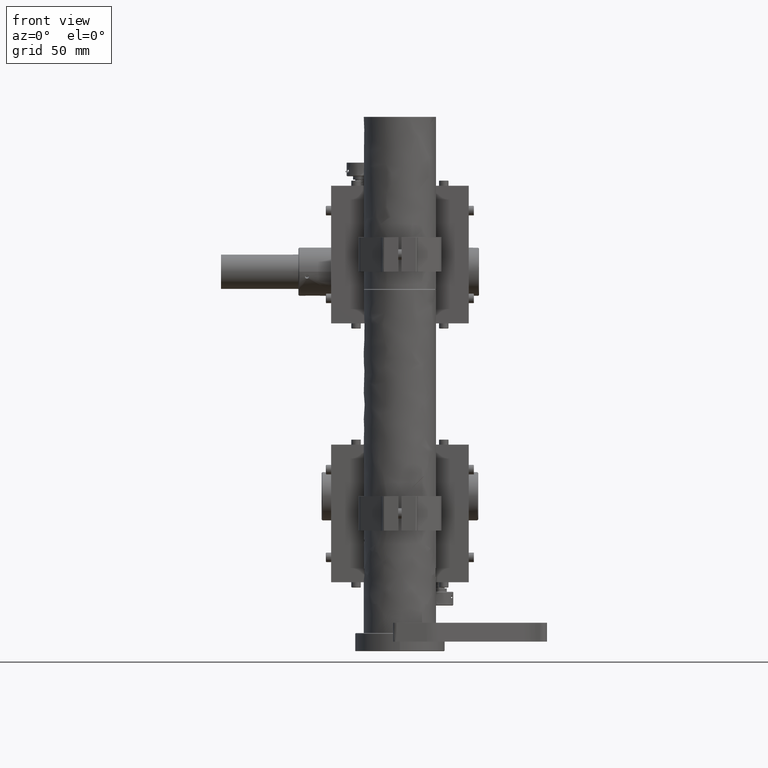
[diagram: clean part render]
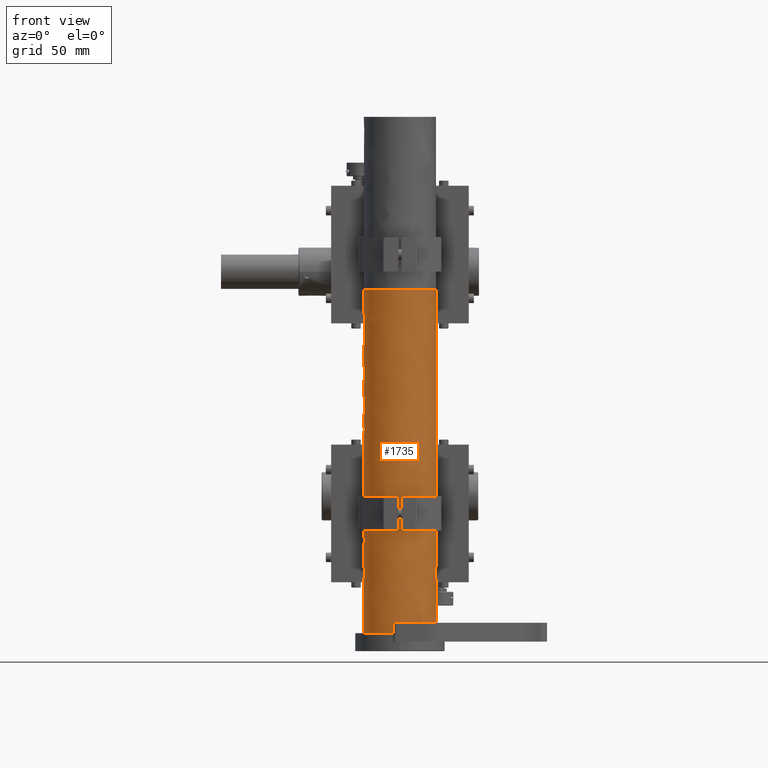
[diagram: same view with one face highlighted and labeled with its STEP entity id]
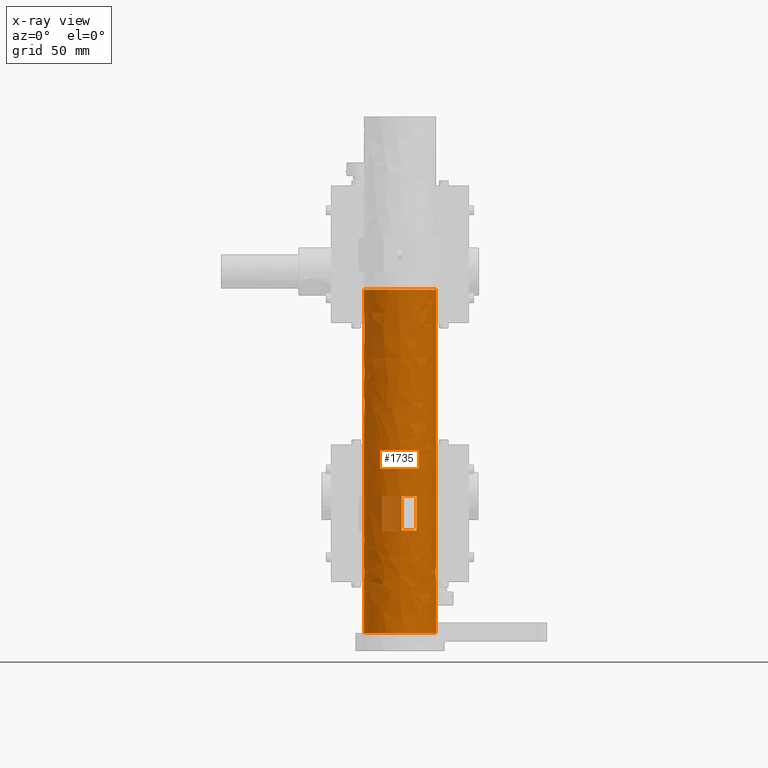
[diagram: x-ray of the same camera — body ghosted, the highlighted face saturated]
A machine part, front view. The second image highlights one B-rep face of the part: STEP entity #1735.
The next image is the same camera in x-ray: the body ghosted, the highlighted face saturated — about 2% of this face is hidden behind the body in this view.
In plain terms, the highlighted face is a freeform B-spline surface patch.
Its self-contained STEP definition (entity closure, byte-faithful):
#1735=ADVANCED_FACE('',(#4821,#4257,#4258,#4259,#4260),#105273,.T.);
#4257=FACE_BOUND('',#7651,.T.);
#4258=FACE_BOUND('',#7652,.T.);
#4259=FACE_BOUND('',#7653,.T.);
#4260=FACE_BOUND('',#7654,.T.);
#4821=FACE_OUTER_BOUND('',#7650,.T.);
#7650=EDGE_LOOP('',(#11911,#11912,#11913,#11914,#11915,#11916,#11917,#11918,
#11919));
#7651=EDGE_LOOP('',(#11920,#11921,#11922,#11923));
#7652=EDGE_LOOP('',(#11924,#11925,#11926,#11927));
#7653=EDGE_LOOP('',(#11928,#11929,#11930,#11931));
#7654=EDGE_LOOP('',(#11932,#11933));
#11911=ORIENTED_EDGE('',*,*,#87232,.F.);
#11912=ORIENTED_EDGE('',*,*,#87247,.T.);
#11913=ORIENTED_EDGE('',*,*,#87240,.F.);
#11914=ORIENTED_EDGE('',*,*,#87248,.T.);
#11915=ORIENTED_EDGE('',*,*,#87249,.T.);
#11916=ORIENTED_EDGE('',*,*,#87238,.F.);
#11917=ORIENTED_EDGE('',*,*,#87250,.T.);
#11918=ORIENTED_EDGE('',*,*,#87251,.T.);
#11919=ORIENTED_EDGE('',*,*,#87242,.F.);
#11920=ORIENTED_EDGE('',*,*,#87252,.T.);
#11921=ORIENTED_EDGE('',*,*,#87253,.T.);
#11922=ORIENTED_EDGE('',*,*,#87254,.T.);
#11923=ORIENTED_EDGE('',*,*,#87255,.T.);
#11924=ORIENTED_EDGE('',*,*,#87256,.T.);
#11925=ORIENTED_EDGE('',*,*,#87257,.T.);
#11926=ORIENTED_EDGE('',*,*,#87258,.T.);
#11927=ORIENTED_EDGE('',*,*,#87259,.T.);
#11928=ORIENTED_EDGE('',*,*,#87260,.T.);
#11929=ORIENTED_EDGE('',*,*,#87261,.T.);
#11930=ORIENTED_EDGE('',*,*,#87262,.T.);
#11931=ORIENTED_EDGE('',*,*,#87263,.T.);
#11932=ORIENTED_EDGE('',*,*,#87235,.F.);
#11933=ORIENTED_EDGE('',*,*,#87264,.T.);
#27257=B_SPLINE_CURVE_WITH_KNOTS('',3,(#136118,#136119,#136120,#136121),
 .UNSPECIFIED.,.F.,.F.,(4,4),(-2.41715683543613,-1.81286762657707),
 .UNSPECIFIED.);
#27258=B_SPLINE_CURVE_WITH_KNOTS('',3,(#136122,#136123,#136124,#136125,
#136126,#136127,#136128),.UNSPECIFIED.,.F.,.F.,(4,3,4),(-2.41715683543613,
-2.11502314293066,-1.81286762657707),.UNSPECIFIED.);
#27262=B_SPLINE_CURVE_WITH_KNOTS('',3,(#136144,#136145,#136146,#136147,
#136148,#136149),.UNSPECIFIED.,.F.,.F.,(4,2,4),(-1.20857841771805,-0.604289136822982,
0.),.UNSPECIFIED.);
#27263=B_SPLINE_CURVE_WITH_KNOTS('',3,(#136150,#136151,#136152,#136153,
#136154,#136155,#136156,#136157,#136158,#136159,#136160,#136161,#136162),
 .UNSPECIFIED.,.F.,.F.,(4,3,3,3,4),(-1.20857841771805,-0.906444725212441,
-0.604289208858919,-0.302133692505269,0.),.UNSPECIFIED.);
#27266=B_SPLINE_CURVE_WITH_KNOTS('',1,(#136176,#136177),.UNSPECIFIED.,.F.,
 .F.,(2,2),(20.0700000000003,219.569999999999),.UNSPECIFIED.);
#27268=B_SPLINE_CURVE_WITH_KNOTS('',1,(#136187,#136188),.UNSPECIFIED.,.F.,
 .F.,(2,2),(0.,160.5),.UNSPECIFIED.);
#27272=B_SPLINE_CURVE_WITH_KNOTS('',1,(#136209,#136210),.UNSPECIFIED.,.F.,
 .F.,(2,2),(0.,31.),.UNSPECIFIED.);
#27277=B_SPLINE_CURVE_WITH_KNOTS('',3,(#136229,#136230,#136231,#136232,
#136233,#136234,#136235),.UNSPECIFIED.,.F.,.F.,(4,3,4),(-2.41715683543613,
-2.12483931013437,-1.81286762657707),.UNSPECIFIED.);
#27278=B_SPLINE_CURVE_WITH_KNOTS('',3,(#136236,#136237,#136238,#136239),
 .UNSPECIFIED.,.F.,.F.,(4,4),(2.41715683543613,3.02144604429512),
 .UNSPECIFIED.);
#27279=B_SPLINE_CURVE_WITH_KNOTS('',3,(#136240,#136241,#136242,#136243,
#136244,#136245,#136246),.UNSPECIFIED.,.F.,.F.,(4,3,4),(2.41715683543613,
2.70947436841666,3.02144604429512),.UNSPECIFIED.);
#27280=B_SPLINE_CURVE_WITH_KNOTS('',1,(#136247,#136248),.UNSPECIFIED.,.F.,
 .F.,(2,2),(0.,160.5),.UNSPECIFIED.);
#27281=B_SPLINE_CURVE_WITH_KNOTS('',1,(#136254,#136255),.UNSPECIFIED.,.F.,
 .F.,(2,2),(-131.946891450771,-65.9734457253857),.UNSPECIFIED.);
#27282=B_SPLINE_CURVE_WITH_KNOTS('',1,(#136259,#136260),.UNSPECIFIED.,.F.,
 .F.,(2,2),(-65.9734457253857,-32.9924425276717),.UNSPECIFIED.);
#27283=B_SPLINE_CURVE_WITH_KNOTS('',1,(#136261,#136262),.UNSPECIFIED.,.F.,
 .F.,(2,2),(20.0700000000003,219.569999999999),.UNSPECIFIED.);
#27284=B_SPLINE_CURVE_WITH_KNOTS('',1,(#136266,#136267),.UNSPECIFIED.,.F.,
 .F.,(2,2),(-98.9544489230996,-65.9734457253856),.UNSPECIFIED.);
#27285=B_SPLINE_CURVE_WITH_KNOTS('',1,(#136273,#136274),.UNSPECIFIED.,.F.,
 .F.,(2,2),(-65.9734457253856,0.),.UNSPECIFIED.);
#27286=B_SPLINE_CURVE_WITH_KNOTS('',1,(#136275,#136276),.UNSPECIFIED.,.F.,
 .F.,(2,2),(0.,31.),.UNSPECIFIED.);
#27287=B_SPLINE_CURVE_WITH_KNOTS('',1,(#136280,#136281),.UNSPECIFIED.,.F.,
 .F.,(2,2),(0.,10.0969771043082),.UNSPECIFIED.);
#27288=B_SPLINE_CURVE_WITH_KNOTS('',1,(#136284,#136285),.UNSPECIFIED.,.F.,
 .F.,(2,2),(0.,20.),.UNSPECIFIED.);
#27289=B_SPLINE_CURVE_WITH_KNOTS('',1,(#136289,#136290),.UNSPECIFIED.,.F.,
 .F.,(2,2),(0.,10.0969771043083),.UNSPECIFIED.);
#27290=B_SPLINE_CURVE_WITH_KNOTS('',1,(#136293,#136294),.UNSPECIFIED.,.F.,
 .F.,(2,2),(0.,20.),.UNSPECIFIED.);
#27291=B_SPLINE_CURVE_WITH_KNOTS('',1,(#136298,#136299),.UNSPECIFIED.,.F.,
 .F.,(2,2),(0.,9.42228628952306),.UNSPECIFIED.);
#27292=B_SPLINE_CURVE_WITH_KNOTS('',1,(#136302,#136303),.UNSPECIFIED.,.F.,
 .F.,(2,2),(-20.,0.),.UNSPECIFIED.);
#27293=B_SPLINE_CURVE_WITH_KNOTS('',1,(#136307,#136308),.UNSPECIFIED.,.F.,
 .F.,(2,2),(0.,9.42228628952307),.UNSPECIFIED.);
#27294=B_SPLINE_CURVE_WITH_KNOTS('',1,(#136311,#136312),.UNSPECIFIED.,.F.,
 .F.,(2,2),(0.,20.),.UNSPECIFIED.);
#27295=B_SPLINE_CURVE_WITH_KNOTS('',1,(#136316,#136317),.UNSPECIFIED.,.F.,
 .F.,(2,2),(0.,9.09659878919808),.UNSPECIFIED.);
#27296=B_SPLINE_CURVE_WITH_KNOTS('',1,(#136320,#136321),.UNSPECIFIED.,.F.,
 .F.,(2,2),(0.,20.),.UNSPECIFIED.);
#27297=B_SPLINE_CURVE_WITH_KNOTS('',1,(#136325,#136326),.UNSPECIFIED.,.F.,
 .F.,(2,2),(0.,9.09659878919804),.UNSPECIFIED.);
#27298=B_SPLINE_CURVE_WITH_KNOTS('',1,(#136329,#136330),.UNSPECIFIED.,.F.,
 .F.,(2,2),(0.,20.),.UNSPECIFIED.);
#27299=B_SPLINE_CURVE_WITH_KNOTS('',3,(#136331,#136332,#136333,#136334,
#136335,#136336,#136337,#136338,#136339,#136340,#136341,#136342,#136343),
 .UNSPECIFIED.,.F.,.F.,(4,3,3,3,4),(-1.20857841771805,-0.916272570554981,
-0.604313351708027,-0.292308057168623,0.),.UNSPECIFIED.);
#27300=B_SPLINE_CURVE_WITH_KNOTS('',3,(#136344,#136345,#136346,#136347,
#136348,#136349),.UNSPECIFIED.,.F.,.F.,(4,2,4),(1.20857841771805,1.81286762657488,
2.41715683543609),.UNSPECIFIED.);
#27301=B_SPLINE_CURVE_WITH_KNOTS('',3,(#136350,#136351,#136352,#136353,
#136354,#136355,#136356,#136357,#136358,#136359,#136360,#136361,#136362),
 .UNSPECIFIED.,.F.,.F.,(4,3,3,3,4),(1.20857841771805,1.50088427332525,1.81284348539892,
2.12484878735977,2.41715683543609),.UNSPECIFIED.);
#27304=B_SPLINE_CURVE_WITH_KNOTS('',1,(#136374,#136375),.UNSPECIFIED.,.F.,
 .F.,(2,2),(-131.946891450771,-65.9734457253857),.UNSPECIFIED.);
#27307=B_SPLINE_CURVE_WITH_KNOTS('',1,(#136382,#136383),.UNSPECIFIED.,.F.,
 .F.,(2,2),(-65.9734457253857,-32.9924425276717),.UNSPECIFIED.);
#27462=B_SPLINE_CURVE_WITH_KNOTS('',1,(#137195,#137196),.UNSPECIFIED.,.F.,
 .F.,(2,2),(0.,20.),.UNSPECIFIED.);
#27464=B_SPLINE_CURVE_WITH_KNOTS('',1,(#137219,#137220),.UNSPECIFIED.,.F.,
 .F.,(2,2),(0.,20.),.UNSPECIFIED.);
#27539=B_SPLINE_CURVE_WITH_KNOTS('',1,(#137520,#137521),.UNSPECIFIED.,.F.,
 .F.,(2,2),(0.,20.),.UNSPECIFIED.);
#27548=B_SPLINE_CURVE_WITH_KNOTS('',1,(#137547,#137548),.UNSPECIFIED.,.F.,
 .F.,(2,2),(-20.,0.),.UNSPECIFIED.);
#27553=B_SPLINE_CURVE_WITH_KNOTS('',1,(#137561,#137562),.UNSPECIFIED.,.F.,
 .F.,(2,2),(0.,20.),.UNSPECIFIED.);
#27576=B_SPLINE_CURVE_WITH_KNOTS('',1,(#137629,#137630),.UNSPECIFIED.,.F.,
 .F.,(2,2),(0.,20.),.UNSPECIFIED.);
#29867=B_SPLINE_CURVE_WITH_KNOTS('',3,(#151545,#151546,#151547,#151548,
#151549,#151550,#151551,#151552,#151553,#151554,#151555,#151556,#151557),
 .UNSPECIFIED.,.F.,.F.,(4,3,3,3,4),(1.20857841771805,1.5107121102235,1.81286762657688,
2.11502314293065,2.41715683543609),.UNSPECIFIED.);
#29870=B_SPLINE_CURVE_WITH_KNOTS('',3,(#151567,#151568,#151569,#151570,
#151571,#151572,#151573),.UNSPECIFIED.,.F.,.F.,(4,3,4),(2.41715683543613,
2.71929052794158,3.02144604429512),.UNSPECIFIED.);
#47618=PCURVE('',#105271,#63114);
#47621=PCURVE('',#105271,#63117);
#47624=PCURVE('',#105272,#63120);
#47626=PCURVE('',#105272,#63122);
#47629=PCURVE('',#105272,#63125);
#47634=PCURVE('',#105273,#63130);
#47635=PCURVE('',#105273,#63131);
#47636=PCURVE('',#105273,#63132);
#47637=PCURVE('',#105273,#63133);
#47638=PCURVE('',#105273,#63134);
#47639=PCURVE('',#105273,#63135);
#47640=PCURVE('',#105273,#63136);
#47641=PCURVE('',#105273,#63137);
#47642=PCURVE('',#105273,#63138);
#47643=PCURVE('',#105273,#63139);
#47644=PCURVE('',#105273,#63140);
#47645=PCURVE('',#105273,#63141);
#47646=PCURVE('',#105273,#63142);
#47647=PCURVE('',#105273,#63143);
#47648=PCURVE('',#105273,#63144);
#47649=PCURVE('',#105273,#63145);
#47650=PCURVE('',#105273,#63146);
#47651=PCURVE('',#105273,#63147);
#47652=PCURVE('',#105273,#63148);
#47653=PCURVE('',#105273,#63149);
#47654=PCURVE('',#105273,#63150);
#47655=PCURVE('',#105273,#63151);
#47656=PCURVE('',#105273,#63152);
#47659=PCURVE('',#105274,#63155);
#47662=PCURVE('',#105275,#63158);
#47796=PCURVE('',#106571,#63292);
#47804=PCURVE('',#106571,#63300);
#47808=PCURVE('',#106571,#63304);
#47841=PCURVE('',#106574,#63337);
#47845=PCURVE('',#106575,#63341);
#47918=PCURVE('',#106582,#63414);
#47926=PCURVE('',#106583,#63422);
#47930=PCURVE('',#106584,#63426);
#47950=PCURVE('',#106587,#63446);
#47967=PCURVE('',#106589,#63463);
#47971=PCURVE('',#106589,#63467);
#47979=PCURVE('',#106589,#63475);
#48717=PCURVE('',#106629,#64213);
#48718=PCURVE('',#106629,#64214);
#50516=PCURVE('',#105611,#66012);
#50519=PCURVE('',#105611,#66015);
#63114=DEFINITIONAL_REPRESENTATION('',(#27258),#277684);
#63117=DEFINITIONAL_REPRESENTATION('',(#27263),#277684);
#63120=DEFINITIONAL_REPRESENTATION('',(#27266),#277684);
#63122=DEFINITIONAL_REPRESENTATION('',(#27268),#277684);
#63125=DEFINITIONAL_REPRESENTATION('',(#27272),#277684);
#63130=DEFINITIONAL_REPRESENTATION('',(#27277),#277684);
#63131=DEFINITIONAL_REPRESENTATION('',(#27279),#277684);
#63132=DEFINITIONAL_REPRESENTATION('',(#27280),#277684);
#63133=DEFINITIONAL_REPRESENTATION('',(#27281),#277684);
#63134=DEFINITIONAL_REPRESENTATION('',(#27282),#277684);
#63135=DEFINITIONAL_REPRESENTATION('',(#27283),#277684);
#63136=DEFINITIONAL_REPRESENTATION('',(#27284),#277684);
#63137=DEFINITIONAL_REPRESENTATION('',(#27285),#277684);
#63138=DEFINITIONAL_REPRESENTATION('',(#27286),#277684);
#63139=DEFINITIONAL_REPRESENTATION('',(#27287),#277684);
#63140=DEFINITIONAL_REPRESENTATION('',(#27288),#277684);
#63141=DEFINITIONAL_REPRESENTATION('',(#27289),#277684);
#63142=DEFINITIONAL_REPRESENTATION('',(#27290),#277684);
#63143=DEFINITIONAL_REPRESENTATION('',(#27291),#277684);
#63144=DEFINITIONAL_REPRESENTATION('',(#27292),#277684);
#63145=DEFINITIONAL_REPRESENTATION('',(#27293),#277684);
#63146=DEFINITIONAL_REPRESENTATION('',(#27294),#277684);
#63147=DEFINITIONAL_REPRESENTATION('',(#27295),#277684);
#63148=DEFINITIONAL_REPRESENTATION('',(#27296),#277684);
#63149=DEFINITIONAL_REPRESENTATION('',(#27297),#277684);
#63150=DEFINITIONAL_REPRESENTATION('',(#27298),#277684);
#63151=DEFINITIONAL_REPRESENTATION('',(#27299),#277684);
#63152=DEFINITIONAL_REPRESENTATION('',(#27301),#277684);
#63155=DEFINITIONAL_REPRESENTATION('',(#27304),#277684);
#63158=DEFINITIONAL_REPRESENTATION('',(#27307),#277684);
#63292=DEFINITIONAL_REPRESENTATION('',(#96813),#277684);
#63300=DEFINITIONAL_REPRESENTATION('',(#96819),#277684);
#63304=DEFINITIONAL_REPRESENTATION('',(#96822),#277684);
#63337=DEFINITIONAL_REPRESENTATION('',(#27462),#277684);
#63341=DEFINITIONAL_REPRESENTATION('',(#27464),#277684);
#63414=DEFINITIONAL_REPRESENTATION('',(#27539),#277684);
#63422=DEFINITIONAL_REPRESENTATION('',(#27548),#277684);
#63426=DEFINITIONAL_REPRESENTATION('',(#27553),#277684);
#63446=DEFINITIONAL_REPRESENTATION('',(#27576),#277684);
#63463=DEFINITIONAL_REPRESENTATION('',(#96892),#277684);
#63467=DEFINITIONAL_REPRESENTATION('',(#96894),#277684);
#63475=DEFINITIONAL_REPRESENTATION('',(#96898),#277684);
#64213=DEFINITIONAL_REPRESENTATION('',(#97416),#277684);
#64214=DEFINITIONAL_REPRESENTATION('',(#97417),#277684);
#66012=DEFINITIONAL_REPRESENTATION('',(#29867),#277684);
#66015=DEFINITIONAL_REPRESENTATION('',(#29870),#277684);
#77925=SURFACE_CURVE('',#27257,(#47618,#47634),.PCURVE_S1.);
#77928=SURFACE_CURVE('',#27262,(#47621,#47655),.PCURVE_S1.);
#77931=SURFACE_CURVE('',#96676,(#47624,#47639),.PCURVE_S1.);
#77933=SURFACE_CURVE('',#96678,(#47626,#47636),.PCURVE_S1.);
#77935=SURFACE_CURVE('',#96679,(#47629,#47642),.PCURVE_S1.);
#77940=SURFACE_CURVE('',#27278,(#47635,#50519),.PCURVE_S1.);
#77941=SURFACE_CURVE('',#96684,(#47637,#47659),.PCURVE_S1.);
#77942=SURFACE_CURVE('',#96685,(#47638,#47662),.PCURVE_S1.);
#77943=SURFACE_CURVE('',#96686,(#47640,#48718),.PCURVE_S1.);
#77944=SURFACE_CURVE('',#96687,(#47641,#48717),.PCURVE_S1.);
#77945=SURFACE_CURVE('',#96688,(#47643,#47804),.PCURVE_S1.);
#77946=SURFACE_CURVE('',#96689,(#47644,#47930),.PCURVE_S1.);
#77947=SURFACE_CURVE('',#96690,(#47645,#47971),.PCURVE_S1.);
#77948=SURFACE_CURVE('',#96691,(#47646,#47918),.PCURVE_S1.);
#77949=SURFACE_CURVE('',#96692,(#47647,#47808),.PCURVE_S1.);
#77950=SURFACE_CURVE('',#96693,(#47648,#47926),.PCURVE_S1.);
#77951=SURFACE_CURVE('',#96694,(#47649,#47967),.PCURVE_S1.);
#77952=SURFACE_CURVE('',#96695,(#47650,#47845),.PCURVE_S1.);
#77953=SURFACE_CURVE('',#96696,(#47651,#47796),.PCURVE_S1.);
#77954=SURFACE_CURVE('',#96697,(#47652,#47841),.PCURVE_S1.);
#77955=SURFACE_CURVE('',#96698,(#47653,#47979),.PCURVE_S1.);
#77956=SURFACE_CURVE('',#96699,(#47654,#47950),.PCURVE_S1.);
#77957=SURFACE_CURVE('',#27300,(#47656,#50516),.PCURVE_S1.);
#87232=EDGE_CURVE('',#100834,#100835,#77925,.T.);
#87235=EDGE_CURVE('',#100837,#100838,#77928,.T.);
#87238=EDGE_CURVE('',#100840,#100841,#77931,.T.);
#87240=EDGE_CURVE('',#100842,#100843,#77933,.T.);
#87242=EDGE_CURVE('',#100835,#100839,#77935,.T.);
#87247=EDGE_CURVE('',#100834,#100843,#77940,.T.);
#87248=EDGE_CURVE('',#100842,#100848,#77941,.T.);
#87249=EDGE_CURVE('',#100848,#100841,#77942,.T.);
#87250=EDGE_CURVE('',#100840,#100849,#77943,.T.);
#87251=EDGE_CURVE('',#100849,#100839,#77944,.T.);
#87252=EDGE_CURVE('',#100853,#100850,#77945,.T.);
#87253=EDGE_CURVE('',#100850,#100851,#77946,.T.);
#87254=EDGE_CURVE('',#100851,#100852,#77947,.T.);
#87255=EDGE_CURVE('',#100852,#100853,#77948,.T.);
#87256=EDGE_CURVE('',#100857,#100854,#77949,.T.);
#87257=EDGE_CURVE('',#100854,#100855,#77950,.T.);
#87258=EDGE_CURVE('',#100855,#100856,#77951,.T.);
#87259=EDGE_CURVE('',#100856,#100857,#77952,.T.);
#87260=EDGE_CURVE('',#100861,#100858,#77953,.T.);
#87261=EDGE_CURVE('',#100858,#100859,#77954,.T.);
#87262=EDGE_CURVE('',#100859,#100860,#77955,.T.);
#87263=EDGE_CURVE('',#100860,#100861,#77956,.T.);
#87264=EDGE_CURVE('',#100837,#100838,#77957,.T.);
#96676=(
BOUNDED_CURVE()
B_SPLINE_CURVE(1,(#136174,#136175),.UNSPECIFIED.,.F.,.F.)
B_SPLINE_CURVE_WITH_KNOTS((2,2),(20.0700000000003,219.569999999999),
 .UNSPECIFIED.)
CURVE()
GEOMETRIC_REPRESENTATION_ITEM()
RATIONAL_B_SPLINE_CURVE((1.,1.))
REPRESENTATION_ITEM('')
);
#96678=(
BOUNDED_CURVE()
B_SPLINE_CURVE(1,(#136185,#136186),.UNSPECIFIED.,.F.,.F.)
B_SPLINE_CURVE_WITH_KNOTS((2,2),(0.,160.5),.UNSPECIFIED.)
CURVE()
GEOMETRIC_REPRESENTATION_ITEM()
RATIONAL_B_SPLINE_CURVE((1.,1.))
REPRESENTATION_ITEM('')
);
#96679=(
BOUNDED_CURVE()
B_SPLINE_CURVE(1,(#136207,#136208),.UNSPECIFIED.,.F.,.F.)
B_SPLINE_CURVE_WITH_KNOTS((2,2),(0.,31.),.UNSPECIFIED.)
CURVE()
GEOMETRIC_REPRESENTATION_ITEM()
RATIONAL_B_SPLINE_CURVE((1.,1.))
REPRESENTATION_ITEM('')
);
#96684=(
BOUNDED_CURVE()
B_SPLINE_CURVE(2,(#136249,#136250,#136251,#136252,#136253),
 .UNSPECIFIED.,.F.,.F.)
B_SPLINE_CURVE_WITH_KNOTS((3,2,3),(-131.946891450771,-98.9601685880784,
-65.9734457253857),.UNSPECIFIED.)
CURVE()
GEOMETRIC_REPRESENTATION_ITEM()
RATIONAL_B_SPLINE_CURVE((1.,0.707106781186548,1.,0.707106781186548,1.))
REPRESENTATION_ITEM('')
);
#96685=(
BOUNDED_CURVE()
B_SPLINE_CURVE(2,(#136256,#136257,#136258),.UNSPECIFIED.,.F.,.F.)
B_SPLINE_CURVE_WITH_KNOTS((3,3),(-65.9734457253857,-32.9924425276717),
 .UNSPECIFIED.)
CURVE()
GEOMETRIC_REPRESENTATION_ITEM()
RATIONAL_B_SPLINE_CURVE((1.,0.707203070198247,1.))
REPRESENTATION_ITEM('')
);
#96686=(
BOUNDED_CURVE()
B_SPLINE_CURVE(2,(#136263,#136264,#136265),.UNSPECIFIED.,.F.,.F.)
B_SPLINE_CURVE_WITH_KNOTS((3,3),(-98.9544489230996,-65.9734457253856),
 .UNSPECIFIED.)
CURVE()
GEOMETRIC_REPRESENTATION_ITEM()
RATIONAL_B_SPLINE_CURVE((1.,0.707203070198239,1.))
REPRESENTATION_ITEM('')
);
#96687=(
BOUNDED_CURVE()
B_SPLINE_CURVE(2,(#136268,#136269,#136270,#136271,#136272),
 .UNSPECIFIED.,.F.,.F.)
B_SPLINE_CURVE_WITH_KNOTS((3,2,3),(-65.9734457253856,-32.9867228626928,
0.),.UNSPECIFIED.)
CURVE()
GEOMETRIC_REPRESENTATION_ITEM()
RATIONAL_B_SPLINE_CURVE((1.,0.707106781186549,1.,0.707106781186549,1.))
REPRESENTATION_ITEM('')
);
#96688=(
BOUNDED_CURVE()
B_SPLINE_CURVE(2,(#136277,#136278,#136279),.UNSPECIFIED.,.F.,.F.)
B_SPLINE_CURVE_WITH_KNOTS((3,3),(0.,10.0969771043082),.UNSPECIFIED.)
CURVE()
GEOMETRIC_REPRESENTATION_ITEM()
RATIONAL_B_SPLINE_CURVE((1.,0.971241812112914,1.))
REPRESENTATION_ITEM('')
);
#96689=(
BOUNDED_CURVE()
B_SPLINE_CURVE(1,(#136282,#136283),.UNSPECIFIED.,.F.,.F.)
B_SPLINE_CURVE_WITH_KNOTS((2,2),(0.,20.),.UNSPECIFIED.)
CURVE()
GEOMETRIC_REPRESENTATION_ITEM()
RATIONAL_B_SPLINE_CURVE((1.,1.))
REPRESENTATION_ITEM('')
);
#96690=(
BOUNDED_CURVE()
B_SPLINE_CURVE(2,(#136286,#136287,#136288),.UNSPECIFIED.,.F.,.F.)
B_SPLINE_CURVE_WITH_KNOTS((3,3),(0.,10.0969771043083),.UNSPECIFIED.)
CURVE()
GEOMETRIC_REPRESENTATION_ITEM()
RATIONAL_B_SPLINE_CURVE((1.,0.97124181211295,1.))
REPRESENTATION_ITEM('')
);
#96691=(
BOUNDED_CURVE()
B_SPLINE_CURVE(1,(#136291,#136292),.UNSPECIFIED.,.F.,.F.)
B_SPLINE_CURVE_WITH_KNOTS((2,2),(0.,20.),.UNSPECIFIED.)
CURVE()
GEOMETRIC_REPRESENTATION_ITEM()
RATIONAL_B_SPLINE_CURVE((1.,1.))
REPRESENTATION_ITEM('')
);
#96692=(
BOUNDED_CURVE()
B_SPLINE_CURVE(2,(#136295,#136296,#136297),.UNSPECIFIED.,.F.,.F.)
B_SPLINE_CURVE_WITH_KNOTS((3,3),(0.,9.42228628952306),.UNSPECIFIED.)
CURVE()
GEOMETRIC_REPRESENTATION_ITEM()
RATIONAL_B_SPLINE_CURVE((1.,0.974941111633099,1.))
REPRESENTATION_ITEM('')
);
#96693=(
BOUNDED_CURVE()
B_SPLINE_CURVE(1,(#136300,#136301),.UNSPECIFIED.,.F.,.F.)
B_SPLINE_CURVE_WITH_KNOTS((2,2),(-20.,0.),.UNSPECIFIED.)
CURVE()
GEOMETRIC_REPRESENTATION_ITEM()
RATIONAL_B_SPLINE_CURVE((1.,1.))
REPRESENTATION_ITEM('')
);
#96694=(
BOUNDED_CURVE()
B_SPLINE_CURVE(2,(#136304,#136305,#136306),.UNSPECIFIED.,.F.,.F.)
B_SPLINE_CURVE_WITH_KNOTS((3,3),(0.,9.42228628952307),.UNSPECIFIED.)
CURVE()
GEOMETRIC_REPRESENTATION_ITEM()
RATIONAL_B_SPLINE_CURVE((1.,0.974941111633153,1.))
REPRESENTATION_ITEM('')
);
#96695=(
BOUNDED_CURVE()
B_SPLINE_CURVE(1,(#136309,#136310),.UNSPECIFIED.,.F.,.F.)
B_SPLINE_CURVE_WITH_KNOTS((2,2),(0.,20.),.UNSPECIFIED.)
CURVE()
GEOMETRIC_REPRESENTATION_ITEM()
RATIONAL_B_SPLINE_CURVE((1.,1.))
REPRESENTATION_ITEM('')
);
#96696=(
BOUNDED_CURVE()
B_SPLINE_CURVE(2,(#136313,#136314,#136315),.UNSPECIFIED.,.F.,.F.)
B_SPLINE_CURVE_WITH_KNOTS((3,3),(0.,9.09659878919808),.UNSPECIFIED.)
CURVE()
GEOMETRIC_REPRESENTATION_ITEM()
RATIONAL_B_SPLINE_CURVE((1.,0.976636864180601,1.))
REPRESENTATION_ITEM('')
);
#96697=(
BOUNDED_CURVE()
B_SPLINE_CURVE(1,(#136318,#136319),.UNSPECIFIED.,.F.,.F.)
B_SPLINE_CURVE_WITH_KNOTS((2,2),(0.,20.),.UNSPECIFIED.)
CURVE()
GEOMETRIC_REPRESENTATION_ITEM()
RATIONAL_B_SPLINE_CURVE((1.,1.))
REPRESENTATION_ITEM('')
);
#96698=(
BOUNDED_CURVE()
B_SPLINE_CURVE(2,(#136322,#136323,#136324),.UNSPECIFIED.,.F.,.F.)
B_SPLINE_CURVE_WITH_KNOTS((3,3),(0.,9.09659878919804),.UNSPECIFIED.)
CURVE()
GEOMETRIC_REPRESENTATION_ITEM()
RATIONAL_B_SPLINE_CURVE((1.,0.976636864180561,1.))
REPRESENTATION_ITEM('')
);
#96699=(
BOUNDED_CURVE()
B_SPLINE_CURVE(1,(#136327,#136328),.UNSPECIFIED.,.F.,.F.)
B_SPLINE_CURVE_WITH_KNOTS((2,2),(0.,20.),.UNSPECIFIED.)
CURVE()
GEOMETRIC_REPRESENTATION_ITEM()
RATIONAL_B_SPLINE_CURVE((1.,1.))
REPRESENTATION_ITEM('')
);
#96813=(
BOUNDED_CURVE()
B_SPLINE_CURVE(2,(#137000,#137001,#137002),.UNSPECIFIED.,.F.,.F.)
B_SPLINE_CURVE_WITH_KNOTS((3,3),(0.,9.09659878919808),.UNSPECIFIED.)
CURVE()
GEOMETRIC_REPRESENTATION_ITEM()
RATIONAL_B_SPLINE_CURVE((1.,0.976636864180544,1.))
REPRESENTATION_ITEM('')
);
#96819=(
BOUNDED_CURVE()
B_SPLINE_CURVE(2,(#137050,#137051,#137052),.UNSPECIFIED.,.F.,.F.)
B_SPLINE_CURVE_WITH_KNOTS((3,3),(0.,10.0969771043082),.UNSPECIFIED.)
CURVE()
GEOMETRIC_REPRESENTATION_ITEM()
RATIONAL_B_SPLINE_CURVE((1.,0.971241812112944,1.))
REPRESENTATION_ITEM('')
);
#96822=(
BOUNDED_CURVE()
B_SPLINE_CURVE(2,(#137075,#137076,#137077),.UNSPECIFIED.,.F.,.F.)
B_SPLINE_CURVE_WITH_KNOTS((3,3),(0.,9.42228628952306),.UNSPECIFIED.)
CURVE()
GEOMETRIC_REPRESENTATION_ITEM()
RATIONAL_B_SPLINE_CURVE((1.,0.974941111633099,1.))
REPRESENTATION_ITEM('')
);
#96892=(
BOUNDED_CURVE()
B_SPLINE_CURVE(2,(#137675,#137676,#137677),.UNSPECIFIED.,.F.,.F.)
B_SPLINE_CURVE_WITH_KNOTS((3,3),(0.,9.42228628952307),.UNSPECIFIED.)
CURVE()
GEOMETRIC_REPRESENTATION_ITEM()
RATIONAL_B_SPLINE_CURVE((1.,0.974941111633113,1.))
REPRESENTATION_ITEM('')
);
#96894=(
BOUNDED_CURVE()
B_SPLINE_CURVE(2,(#137689,#137690,#137691),.UNSPECIFIED.,.F.,.F.)
B_SPLINE_CURVE_WITH_KNOTS((3,3),(0.,10.0969771043083),.UNSPECIFIED.)
CURVE()
GEOMETRIC_REPRESENTATION_ITEM()
RATIONAL_B_SPLINE_CURVE((1.,0.97124181211295,1.))
REPRESENTATION_ITEM('')
);
#96898=(
BOUNDED_CURVE()
B_SPLINE_CURVE(2,(#137717,#137718,#137719),.UNSPECIFIED.,.F.,.F.)
B_SPLINE_CURVE_WITH_KNOTS((3,3),(0.,9.09659878919804),.UNSPECIFIED.)
CURVE()
GEOMETRIC_REPRESENTATION_ITEM()
RATIONAL_B_SPLINE_CURVE((1.,0.976636864180561,1.))
REPRESENTATION_ITEM('')
);
#97416=(
BOUNDED_CURVE()
B_SPLINE_CURVE(2,(#142263,#142264,#142265,#142266,#142267),
 .UNSPECIFIED.,.F.,.F.)
B_SPLINE_CURVE_WITH_KNOTS((3,2,3),(-65.9734457253856,-32.9867228626928,
0.),.UNSPECIFIED.)
CURVE()
GEOMETRIC_REPRESENTATION_ITEM()
RATIONAL_B_SPLINE_CURVE((1.,0.707106781186549,1.,0.707106781186549,1.))
REPRESENTATION_ITEM('')
);
#97417=(
BOUNDED_CURVE()
B_SPLINE_CURVE(2,(#142268,#142269,#142270),.UNSPECIFIED.,.F.,.F.)
B_SPLINE_CURVE_WITH_KNOTS((3,3),(-98.9544489230996,-65.9734457253856),
 .UNSPECIFIED.)
CURVE()
GEOMETRIC_REPRESENTATION_ITEM()
RATIONAL_B_SPLINE_CURVE((1.,0.70720307019824,1.))
REPRESENTATION_ITEM('')
);
#100834=VERTEX_POINT('',#133447);
#100835=VERTEX_POINT('',#133448);
#100837=VERTEX_POINT('',#133450);
#100838=VERTEX_POINT('',#133451);
#100839=VERTEX_POINT('',#133452);
#100840=VERTEX_POINT('',#133453);
#100841=VERTEX_POINT('',#133454);
#100842=VERTEX_POINT('',#133455);
#100843=VERTEX_POINT('',#133456);
#100848=VERTEX_POINT('',#133461);
#100849=VERTEX_POINT('',#133462);
#100850=VERTEX_POINT('',#133463);
#100851=VERTEX_POINT('',#133464);
#100852=VERTEX_POINT('',#133465);
#100853=VERTEX_POINT('',#133466);
#100854=VERTEX_POINT('',#133467);
#100855=VERTEX_POINT('',#133468);
#100856=VERTEX_POINT('',#133469);
#100857=VERTEX_POINT('',#133470);
#100858=VERTEX_POINT('',#133471);
#100859=VERTEX_POINT('',#133472);
#100860=VERTEX_POINT('',#133473);
#100861=VERTEX_POINT('',#133474);
#105271=(
BOUNDED_SURFACE()
B_SPLINE_SURFACE(1,2,((#126343,#126344,#126345,#126346,#126347),(#126348,
#126349,#126350,#126351,#126352)),.UNSPECIFIED.,.F.,.F.,.F.)
B_SPLINE_SURFACE_WITH_KNOTS((2,2),(3,2,3),(0.,50.6430091609897),(-4.9960036108132E-15,
1.5707963267949,3.14159265358979),.UNSPECIFIED.)
GEOMETRIC_REPRESENTATION_ITEM()
RATIONAL_B_SPLINE_SURFACE(((1.,0.707106781186547,1.,0.707106781186548,1.),
(1.,0.707106781186547,1.,0.707106781186548,1.)))
REPRESENTATION_ITEM('')
SURFACE()
);
#105272=(
BOUNDED_SURFACE()
B_SPLINE_SURFACE(2,1,((#126353,#126354),(#126355,#126356),(#126357,#126358),
(#126359,#126360),(#126361,#126362),(#126363,#126364),(#126365,#126366),
(#126367,#126368),(#126369,#126370)),.UNSPECIFIED.,.T.,.F.,.F.)
B_SPLINE_SURFACE_WITH_KNOTS((3,2,2,2,3),(2,2),(0.,32.9867228626938,65.9734457253876,
98.9601685880814,131.946891450775),(0.,239.64),.UNSPECIFIED.)
GEOMETRIC_REPRESENTATION_ITEM()
RATIONAL_B_SPLINE_SURFACE(((1.,1.),(0.707106781186548,0.707106781186548),
(1.,1.),(0.707106781186548,0.707106781186548),(1.,1.),(0.707106781186548,
0.707106781186548),(1.,1.),(0.707106781186548,0.707106781186548),(1.,1.)))
REPRESENTATION_ITEM('')
SURFACE()
);
#105273=(
BOUNDED_SURFACE()
B_SPLINE_SURFACE(2,1,((#126371,#126372),(#126373,#126374),(#126375,#126376),
(#126377,#126378),(#126379,#126380),(#126381,#126382),(#126383,#126384),
(#126385,#126386),(#126387,#126388)),.UNSPECIFIED.,.T.,.F.,.F.)
B_SPLINE_SURFACE_WITH_KNOTS((3,2,2,2,3),(2,2),(0.,32.9867228626938,65.9734457253876,
98.9601685880814,131.946891450775),(0.,239.64),.UNSPECIFIED.)
GEOMETRIC_REPRESENTATION_ITEM()
RATIONAL_B_SPLINE_SURFACE(((1.,1.),(0.707106781186548,0.707106781186548),
(1.,1.),(0.707106781186548,0.707106781186548),(1.,1.),(0.707106781186548,
0.707106781186548),(1.,1.),(0.707106781186548,0.707106781186548),(1.,1.)))
REPRESENTATION_ITEM('')
SURFACE()
);
#105274=(
BOUNDED_SURFACE()
B_SPLINE_SURFACE(2,1,((#126389,#126390),(#126391,#126392),(#126393,#126394),
(#126395,#126396),(#126397,#126398),(#126399,#126400),(#126401,#126402),
(#126403,#126404),(#126405,#126406)),.UNSPECIFIED.,.T.,.F.,.F.)
B_SPLINE_SURFACE_WITH_KNOTS((3,2,2,2,3),(2,2),(0.,36.4738907081781,72.9477814163561,
109.421672124534,145.895562832712),(0.,32.8380389183041),.UNSPECIFIED.)
GEOMETRIC_REPRESENTATION_ITEM()
RATIONAL_B_SPLINE_SURFACE(((1.,1.),(0.707106781186548,0.707106781186548),
(1.,1.),(0.707106781186548,0.707106781186548),(1.,1.),(0.707106781186548,
0.707106781186548),(1.,1.),(0.707106781186548,0.707106781186548),(1.,1.)))
REPRESENTATION_ITEM('')
SURFACE()
);
#105275=(
BOUNDED_SURFACE()
B_SPLINE_SURFACE(2,1,((#126407,#126408),(#126409,#126410),(#126411,#126412),
(#126413,#126414),(#126415,#126416),(#126417,#126418),(#126419,#126420),
(#126421,#126422),(#126423,#126424)),.UNSPECIFIED.,.T.,.F.,.F.)
B_SPLINE_SURFACE_WITH_KNOTS((3,2,2,2,3),(2,2),(0.,36.4738907081781,72.9477814163561,
109.421672124534,145.895562832712),(0.,32.8380389183041),.UNSPECIFIED.)
GEOMETRIC_REPRESENTATION_ITEM()
RATIONAL_B_SPLINE_SURFACE(((1.,1.),(0.707106781186548,0.707106781186548),
(1.,1.),(0.707106781186548,0.707106781186548),(1.,1.),(0.707106781186548,
0.707106781186548),(1.,1.),(0.707106781186548,0.707106781186548),(1.,1.)))
REPRESENTATION_ITEM('')
SURFACE()
);
#105611=(
BOUNDED_SURFACE()
B_SPLINE_SURFACE(1,2,((#133059,#133060,#133061,#133062,#133063),(#133064,
#133065,#133066,#133067,#133068)),.UNSPECIFIED.,.F.,.F.,.F.)
B_SPLINE_SURFACE_WITH_KNOTS((2,2),(3,2,3),(0.,50.6430091609897),(3.14159265358979,
4.71238898038469,6.28318530717959),.UNSPECIFIED.)
GEOMETRIC_REPRESENTATION_ITEM()
RATIONAL_B_SPLINE_SURFACE(((1.,0.707106781186547,1.,0.707106781186548,1.),
(1.,0.707106781186547,1.,0.707106781186548,1.)))
REPRESENTATION_ITEM('')
SURFACE()
);
#106571=B_SPLINE_SURFACE_WITH_KNOTS('',1,1,((#126701,#126702),(#126703,
#126704)),.UNSPECIFIED.,.F.,.F.,.F.,(2,2),(2,2),(-57.8464023931734,-1.69908531688634E-12),
(-2.30926389122033E-14,86.6400000000003),.UNSPECIFIED.);
#106574=B_SPLINE_SURFACE_WITH_KNOTS('',1,1,((#126767,#126768),(#126769,
#126770)),.UNSPECIFIED.,.F.,.F.,.F.,(2,2),(2,2),(-21.8685876439164,-1.08624220729325E-12),
(1.86073378927176E-13,24.2400000000003),.UNSPECIFIED.);
#106575=B_SPLINE_SURFACE_WITH_KNOTS('',1,1,((#126771,#126772),(#126773,
#126774)),.UNSPECIFIED.,.F.,.F.,.F.,(2,2),(2,2),(1.17594822768297E-12,21.8685876439166),
(-24.2400000000001,-1.33226762955019E-15),.UNSPECIFIED.);
#106582=B_SPLINE_SURFACE_WITH_KNOTS('',3,3,((#126961,#126962,#126963,#126964),
(#126965,#126966,#126967,#126968),(#126969,#126970,#126971,#126972),(#126973,
#126974,#126975,#126976)),.UNSPECIFIED.,.F.,.F.,.F.,(4,4),(4,4),(0.,1.),
(0.399999999999997,2.4),.UNSPECIFIED.);
#106583=B_SPLINE_SURFACE_WITH_KNOTS('',3,3,((#126995,#126996,#126997,#126998),
(#126999,#127000,#127001,#127002),(#127003,#127004,#127005,#127006),(#127007,
#127008,#127009,#127010)),.UNSPECIFIED.,.F.,.F.,.F.,(4,4),(4,4),(0.,1.),
(0.400025790549889,2.40002579054989),.UNSPECIFIED.);
#106584=B_SPLINE_SURFACE_WITH_KNOTS('',3,3,((#127011,#127012,#127013,#127014),
(#127015,#127016,#127017,#127018),(#127019,#127020,#127021,#127022),(#127023,
#127024,#127025,#127026)),.UNSPECIFIED.,.F.,.F.,.F.,(4,4),(4,4),(0.,1.),
(0.399999999999999,2.4),.UNSPECIFIED.);
#106587=B_SPLINE_SURFACE_WITH_KNOTS('',3,3,((#127095,#127096,#127097,#127098),
(#127099,#127100,#127101,#127102),(#127103,#127104,#127105,#127106),(#127107,
#127108,#127109,#127110)),.UNSPECIFIED.,.F.,.F.,.F.,(4,4),(4,4),(0.,1.),
(0.400025790549886,2.40002579054989),.UNSPECIFIED.);
#106589=B_SPLINE_SURFACE_WITH_KNOTS('',1,1,((#127133,#127134),(#127135,
#127136)),.UNSPECIFIED.,.F.,.F.,.F.,(2,2),(2,2),(6.13731288012787E-13,57.8464023931734),
(-7.105427357601E-15,86.6400000000004),.UNSPECIFIED.);
#106629=B_SPLINE_SURFACE_WITH_KNOTS('',1,1,((#128521,#128522),(#128523,
#128524)),.UNSPECIFIED.,.F.,.F.,.F.,(2,2),(2,2),(1.11320811917765,63.8430448630213),
(-0.0218183096190367,61.1465199247362),.UNSPECIFIED.);
#126343=CARTESIAN_POINT('',(225.12013197305,29.0068968398495,-44.9999999999994));
#126344=CARTESIAN_POINT('',(225.12013197305,29.0068968398495,-40.9999999999994));
#126345=CARTESIAN_POINT('',(225.119042513068,33.0068966914841,-40.9999999999994));
#126346=CARTESIAN_POINT('',(225.117953053085,37.0068965431187,-40.9999999999994));
#126347=CARTESIAN_POINT('',(225.117953053085,37.0068965431187,-44.9999999999994));
#126348=CARTESIAN_POINT('',(174.477124690478,28.9931034568807,-44.9999999999994));
#126349=CARTESIAN_POINT('',(174.477124690478,28.9931034568807,-40.9999999999995));
#126350=CARTESIAN_POINT('',(174.476035230495,32.9931033085152,-40.9999999999995));
#126351=CARTESIAN_POINT('',(174.474945770513,36.9931031601497,-40.9999999999995));
#126352=CARTESIAN_POINT('',(174.474945770513,36.9931031601497,-44.9999999999994));
#126353=CARTESIAN_POINT('',(199.797538871781,11.9999999999993,10.0700000000008));
#126354=CARTESIAN_POINT('',(199.797538871781,12.000000000001,-229.57));
#126355=CARTESIAN_POINT('',(178.797538871781,11.9999999999993,10.0700000000008));
#126356=CARTESIAN_POINT('',(178.797538871781,12.000000000001,-229.569999999999));
#126357=CARTESIAN_POINT('',(178.797538871781,32.9999999999993,10.070000000001));
#126358=CARTESIAN_POINT('',(178.797538871781,33.0000000000009,-229.569999999999));
#126359=CARTESIAN_POINT('',(178.797538871781,53.9999999999992,10.0700000000011));
#126360=CARTESIAN_POINT('',(178.797538871781,54.0000000000008,-229.569999999999));
#126361=CARTESIAN_POINT('',(199.797538871781,53.9999999999993,10.0700000000011));
#126362=CARTESIAN_POINT('',(199.797538871781,54.0000000000009,-229.569999999999));
#126363=CARTESIAN_POINT('',(220.797538871781,53.9999999999993,10.0700000000011));
#126364=CARTESIAN_POINT('',(220.797538871781,54.0000000000009,-229.569999999999));
#126365=CARTESIAN_POINT('',(220.797538871781,32.9999999999993,10.070000000001));
#126366=CARTESIAN_POINT('',(220.797538871781,33.000000000001,-229.569999999999));
#126367=CARTESIAN_POINT('',(220.797538871781,11.9999999999993,10.0700000000008));
#126368=CARTESIAN_POINT('',(220.797538871781,12.0000000000011,-229.569999999999));
#126369=CARTESIAN_POINT('',(199.797538871781,11.9999999999993,10.0700000000008));
#126370=CARTESIAN_POINT('',(199.797538871781,12.000000000001,-229.57));
#126371=CARTESIAN_POINT('',(199.797538871781,11.9999999999993,10.0700000000008));
#126372=CARTESIAN_POINT('',(199.797538871781,12.000000000001,-229.57));
#126373=CARTESIAN_POINT('',(178.797538871781,11.9999999999993,10.0700000000008));
#126374=CARTESIAN_POINT('',(178.797538871781,12.000000000001,-229.569999999999));
#126375=CARTESIAN_POINT('',(178.797538871781,32.9999999999993,10.070000000001));
#126376=CARTESIAN_POINT('',(178.797538871781,33.0000000000009,-229.569999999999));
#126377=CARTESIAN_POINT('',(178.797538871781,53.9999999999992,10.0700000000011));
#126378=CARTESIAN_POINT('',(178.797538871781,54.0000000000008,-229.569999999999));
#126379=CARTESIAN_POINT('',(199.797538871781,53.9999999999993,10.0700000000011));
#126380=CARTESIAN_POINT('',(199.797538871781,54.0000000000009,-229.569999999999));
#126381=CARTESIAN_POINT('',(220.797538871781,53.9999999999993,10.0700000000011));
#126382=CARTESIAN_POINT('',(220.797538871781,54.0000000000009,-229.569999999999));
#126383=CARTESIAN_POINT('',(220.797538871781,32.9999999999993,10.070000000001));
#126384=CARTESIAN_POINT('',(220.797538871781,33.000000000001,-229.569999999999));
#126385=CARTESIAN_POINT('',(220.797538871781,11.9999999999993,10.0700000000008));
#126386=CARTESIAN_POINT('',(220.797538871781,12.0000000000011,-229.569999999999));
#126387=CARTESIAN_POINT('',(199.797538871781,11.9999999999993,10.0700000000008));
#126388=CARTESIAN_POINT('',(199.797538871781,12.000000000001,-229.57));
#126389=CARTESIAN_POINT('',(199.797538871781,33.0000000000011,-230.499999999999));
#126390=CARTESIAN_POINT('',(176.577539733042,32.9936756848024,-207.279999999999));
#126391=CARTESIAN_POINT('',(199.797538871781,33.0000000000011,-230.499999999999));
#126392=CARTESIAN_POINT('',(176.58386404824,9.7736765460631,-207.279999999999));
#126393=CARTESIAN_POINT('',(199.797538871781,33.0000000000011,-230.499999999999));
#126394=CARTESIAN_POINT('',(199.80386318698,9.78000086126159,-207.279999999999));
#126395=CARTESIAN_POINT('',(199.797538871781,33.0000000000011,-230.499999999999));
#126396=CARTESIAN_POINT('',(223.023862325719,9.78632517646009,-207.279999999999));
#126397=CARTESIAN_POINT('',(199.797538871781,33.0000000000011,-230.499999999999));
#126398=CARTESIAN_POINT('',(223.01753801052,33.0063243151994,-207.279999999999));
#126399=CARTESIAN_POINT('',(199.797538871781,33.0000000000011,-230.499999999999));
#126400=CARTESIAN_POINT('',(223.011213695322,56.2263234539387,-207.279999999998));
#126401=CARTESIAN_POINT('',(199.797538871781,33.0000000000011,-230.499999999999));
#126402=CARTESIAN_POINT('',(199.791214556583,56.2199991387402,-207.279999999998));
#126403=CARTESIAN_POINT('',(199.797538871781,33.0000000000011,-230.499999999999));
#126404=CARTESIAN_POINT('',(176.571215417843,56.2136748235417,-207.279999999998));
#126405=CARTESIAN_POINT('',(199.797538871781,33.0000000000011,-230.499999999999));
#126406=CARTESIAN_POINT('',(176.577539733042,32.9936756848024,-207.279999999999));
#126407=CARTESIAN_POINT('',(199.797538871781,33.0000000000011,-230.499999999999));
#126408=CARTESIAN_POINT('',(176.577539733042,32.9936756848024,-207.279999999999));
#126409=CARTESIAN_POINT('',(199.797538871781,33.0000000000011,-230.499999999999));
#126410=CARTESIAN_POINT('',(176.58386404824,9.7736765460631,-207.279999999999));
#126411=CARTESIAN_POINT('',(199.797538871781,33.0000000000011,-230.499999999999));
#126412=CARTESIAN_POINT('',(199.80386318698,9.78000086126159,-207.279999999999));
#126413=CARTESIAN_POINT('',(199.797538871781,33.0000000000011,-230.499999999999));
#126414=CARTESIAN_POINT('',(223.023862325719,9.78632517646009,-207.279999999999));
#126415=CARTESIAN_POINT('',(199.797538871781,33.0000000000011,-230.499999999999));
#126416=CARTESIAN_POINT('',(223.01753801052,33.0063243151994,-207.279999999999));
#126417=CARTESIAN_POINT('',(199.797538871781,33.0000000000011,-230.499999999999));
#126418=CARTESIAN_POINT('',(223.011213695322,56.2263234539387,-207.279999999998));
#126419=CARTESIAN_POINT('',(199.797538871781,33.0000000000011,-230.499999999999));
#126420=CARTESIAN_POINT('',(199.791214556583,56.2199991387402,-207.279999999998));
#126421=CARTESIAN_POINT('',(199.797538871781,33.0000000000011,-230.499999999999));
#126422=CARTESIAN_POINT('',(176.571215417843,56.2136748235417,-207.279999999998));
#126423=CARTESIAN_POINT('',(199.797538871781,33.0000000000011,-230.499999999999));
#126424=CARTESIAN_POINT('',(176.577539733042,32.9936756848024,-207.279999999999));
#126701=CARTESIAN_POINT('',(170.877005339016,-7.32000000000224,-69.4999999999967));
#126702=CARTESIAN_POINT('',(170.877005339016,79.3199999999981,-69.4999999999967));
#126703=CARTESIAN_POINT('',(228.723407732187,-7.32000000000224,-69.4999999999967));
#126704=CARTESIAN_POINT('',(228.723407732187,79.3199999999981,-69.4999999999967));
#126767=CARTESIAN_POINT('',(200.79753887178,73.9223823036578,-91.6199999999963));
#126768=CARTESIAN_POINT('',(200.79753887178,73.9223823036578,-67.3799999999962));
#126769=CARTESIAN_POINT('',(200.79753887178,52.0537946597425,-91.6199999999963));
#126770=CARTESIAN_POINT('',(200.79753887178,52.0537946597425,-67.3799999999962));
#126771=CARTESIAN_POINT('',(198.79753887178,52.0537946597424,-91.6199999999963));
#126772=CARTESIAN_POINT('',(198.79753887178,52.0537946597424,-67.3799999999962));
#126773=CARTESIAN_POINT('',(198.79753887178,73.9223823036578,-91.6199999999963));
#126774=CARTESIAN_POINT('',(198.79753887178,73.9223823036578,-67.3799999999962));
#126961=CARTESIAN_POINT('',(179.764167325947,26.7020618845037,-89.4999999999965));
#126962=CARTESIAN_POINT('',(179.764167325947,26.7020618845036,-82.8333333333298));
#126963=CARTESIAN_POINT('',(179.764167325947,26.7020618845036,-76.1666666666631));
#126964=CARTESIAN_POINT('',(179.764167325947,26.7020618845035,-69.4999999999965));
#126965=CARTESIAN_POINT('',(179.250504898629,27.2406407990598,-89.4999999999965));
#126966=CARTESIAN_POINT('',(179.250504898629,27.2406407990598,-82.8333333333298));
#126967=CARTESIAN_POINT('',(179.250504898629,27.2406407990597,-76.1666666666631));
#126968=CARTESIAN_POINT('',(179.250504898629,27.2406407990597,-69.4999999999965));
#126969=CARTESIAN_POINT('',(178.891758886978,27.9253296103603,-89.4999999999965));
#126970=CARTESIAN_POINT('',(178.891758886978,27.9253296103602,-82.8333333333298));
#126971=CARTESIAN_POINT('',(178.891758886978,27.9253296103602,-76.1666666666631));
#126972=CARTESIAN_POINT('',(178.891758886978,27.9253296103601,-69.4999999999965));
#126973=CARTESIAN_POINT('',(178.74132313037,28.6542228944404,-89.4999999999965));
#126974=CARTESIAN_POINT('',(178.74132313037,28.6542228944404,-82.8333333333298));
#126975=CARTESIAN_POINT('',(178.74132313037,28.6542228944404,-76.1666666666631));
#126976=CARTESIAN_POINT('',(178.74132313037,28.6542228944403,-69.4999999999965));
#126995=CARTESIAN_POINT('',(189.79753887178,51.4661853126173,-69.4999999999963));
#126996=CARTESIAN_POINT('',(189.79753887178,51.4661853126173,-76.166666666663));
#126997=CARTESIAN_POINT('',(189.79753887178,51.4661853126174,-82.8333333333296));
#126998=CARTESIAN_POINT('',(189.79753887178,51.4661853126174,-89.4999999999963));
#126999=CARTESIAN_POINT('',(189.053854598268,51.4370299053371,-69.4999999999963));
#127000=CARTESIAN_POINT('',(189.053854598268,51.4370299053371,-76.166666666663));
#127001=CARTESIAN_POINT('',(189.053854598268,51.4370299053372,-82.8333333333296));
#127002=CARTESIAN_POINT('',(189.053854598268,51.4370299053372,-89.4999999999963));
#127003=CARTESIAN_POINT('',(188.31969778838,51.1951389222666,-69.4999999999963));
#127004=CARTESIAN_POINT('',(188.31969778838,51.1951389222666,-76.166666666663));
#127005=CARTESIAN_POINT('',(188.31969778838,51.1951389222666,-82.8333333333296));
#127006=CARTESIAN_POINT('',(188.31969778838,51.1951389222667,-89.4999999999963));
#127007=CARTESIAN_POINT('',(187.704336418654,50.7765141247551,-69.4999999999963));
#127008=CARTESIAN_POINT('',(187.704336418654,50.7765141247551,-76.166666666663));
#127009=CARTESIAN_POINT('',(187.704336418654,50.7765141247551,-82.8333333333296));
#127010=CARTESIAN_POINT('',(187.704336418654,50.7765141247552,-89.4999999999963));
#127011=CARTESIAN_POINT('',(184.948296466863,18.1507575950804,-69.4999999999965));
#127012=CARTESIAN_POINT('',(184.948296466863,18.1507575950804,-76.1666666666632));
#127013=CARTESIAN_POINT('',(184.948296466863,18.1507575950805,-82.8333333333299));
#127014=CARTESIAN_POINT('',(184.948296466863,18.1507575950805,-89.4999999999965));
#127015=CARTESIAN_POINT('',(185.188245142554,17.4462428901398,-69.4999999999965));
#127016=CARTESIAN_POINT('',(185.188245142554,17.4462428901398,-76.1666666666632));
#127017=CARTESIAN_POINT('',(185.188245142554,17.4462428901399,-82.8333333333299));
#127018=CARTESIAN_POINT('',(185.188245142554,17.4462428901399,-89.4999999999965));
#127019=CARTESIAN_POINT('',(185.629386205287,16.8115051238408,-69.4999999999965));
#127020=CARTESIAN_POINT('',(185.629386205287,16.8115051238408,-76.1666666666632));
#127021=CARTESIAN_POINT('',(185.629386205287,16.8115051238409,-82.8333333333299));
#127022=CARTESIAN_POINT('',(185.629386205287,16.8115051238409,-89.4999999999966));
#127023=CARTESIAN_POINT('',(186.20606257657,16.3410152735287,-69.4999999999965));
#127024=CARTESIAN_POINT('',(186.20606257657,16.3410152735288,-76.1666666666632));
#127025=CARTESIAN_POINT('',(186.20606257657,16.3410152735288,-82.8333333333299));
#127026=CARTESIAN_POINT('',(186.20606257657,16.3410152735289,-89.4999999999966));
#127095=CARTESIAN_POINT('',(209.50995699291,51.6190476190459,-89.4999999999964));
#127096=CARTESIAN_POINT('',(209.50995699291,51.6190476190458,-82.8333333333297));
#127097=CARTESIAN_POINT('',(209.50995699291,51.6190476190458,-76.166666666663));
#127098=CARTESIAN_POINT('',(209.50995699291,51.6190476190457,-69.4999999999963));
#127099=CARTESIAN_POINT('',(210.254003981194,51.6014290019568,-89.4999999999964));
#127100=CARTESIAN_POINT('',(210.254003981194,51.6014290019568,-82.8333333333297));
#127101=CARTESIAN_POINT('',(210.254003981194,51.6014290019567,-76.166666666663));
#127102=CARTESIAN_POINT('',(210.254003981194,51.6014290019567,-69.4999999999963));
#127103=CARTESIAN_POINT('',(210.991823820229,51.3709526380457,-89.4999999999964));
#127104=CARTESIAN_POINT('',(210.991823820229,51.3709526380456,-82.8333333333297));
#127105=CARTESIAN_POINT('',(210.991823820229,51.3709526380456,-76.166666666663));
#127106=CARTESIAN_POINT('',(210.991823820229,51.3709526380455,-69.4999999999963));
#127107=CARTESIAN_POINT('',(211.613603347794,50.9619213977413,-89.4999999999964));
#127108=CARTESIAN_POINT('',(211.613603347794,50.9619213977413,-82.8333333333297));
#127109=CARTESIAN_POINT('',(211.613603347794,50.9619213977412,-76.166666666663));
#127110=CARTESIAN_POINT('',(211.613603347794,50.9619213977412,-69.4999999999963));
#127133=CARTESIAN_POINT('',(228.723407732188,-7.32000000000211,-89.4999999999967));
#127134=CARTESIAN_POINT('',(228.723407732188,79.3199999999983,-89.4999999999967));
#127135=CARTESIAN_POINT('',(170.877005339016,-7.32000000000211,-89.4999999999967));
#127136=CARTESIAN_POINT('',(170.877005339016,79.3199999999983,-89.4999999999967));
#128521=CARTESIAN_POINT('',(231.081586419128,2.41583088282172,-9.99999999999975));
#128522=CARTESIAN_POINT('',(231.081586419128,63.584169117177,-9.99999999999975));
#128523=CARTESIAN_POINT('',(168.351749675285,2.41583088282172,-9.99999999999975));
#128524=CARTESIAN_POINT('',(168.351749675285,63.584169117177,-9.99999999999975));
#133059=CARTESIAN_POINT('',(225.117953053085,37.0068965431187,-44.9999999999994));
#133060=CARTESIAN_POINT('',(225.117953053085,37.0068965431187,-48.9999999999994));
#133061=CARTESIAN_POINT('',(225.119042513068,33.0068966914841,-48.9999999999994));
#133062=CARTESIAN_POINT('',(225.12013197305,29.0068968398495,-48.9999999999994));
#133063=CARTESIAN_POINT('',(225.12013197305,29.0068968398495,-44.9999999999994));
#133064=CARTESIAN_POINT('',(174.474945770513,36.9931031601497,-44.9999999999994));
#133065=CARTESIAN_POINT('',(174.474945770513,36.9931031601497,-48.9999999999993));
#133066=CARTESIAN_POINT('',(174.476035230495,32.9931033085152,-48.9999999999993));
#133067=CARTESIAN_POINT('',(174.477124690478,28.9931034568807,-48.9999999999993));
#133068=CARTESIAN_POINT('',(174.477124690478,28.9931034568807,-44.9999999999994));
#133447=CARTESIAN_POINT('',(220.411976775229,37.0056147998628,-44.9999999999994));
#133448=CARTESIAN_POINT('',(220.797538092863,33.0057196649079,-40.9999999999994));
#133450=CARTESIAN_POINT('',(179.183100968333,28.9943852001366,-44.9999999999994));
#133451=CARTESIAN_POINT('',(179.180922048368,36.9943849034057,-44.9999999999994));
#133452=CARTESIAN_POINT('',(220.797538092863,33.0057196649075,-9.99999999999954));
#133453=CARTESIAN_POINT('',(199.797538871781,11.9999999999994,-9.99999999999962));
#133454=CARTESIAN_POINT('',(199.797538871781,12.0000000000008,-209.499999999999));
#133455=CARTESIAN_POINT('',(220.797538092863,33.0057196649091,-209.499999999999));
#133456=CARTESIAN_POINT('',(220.797538092863,33.0057196649079,-48.9999999999994));
#133461=CARTESIAN_POINT('',(178.797539650699,32.9942803350927,-209.499999999999));
#133462=CARTESIAN_POINT('',(178.797539650699,32.9942803350912,-9.99999999999961));
#133463=CARTESIAN_POINT('',(184.948296466864,18.1507575950809,-69.4999999999966));
#133464=CARTESIAN_POINT('',(184.948296466864,18.1507575950811,-89.4999999999966));
#133465=CARTESIAN_POINT('',(179.764167325948,26.7020618845038,-89.4999999999965));
#133466=CARTESIAN_POINT('',(179.764167325948,26.7020618845037,-69.4999999999966));
#133467=CARTESIAN_POINT('',(189.79753887178,51.4661853126179,-69.4999999999964));
#133468=CARTESIAN_POINT('',(189.79753887178,51.466185312618,-89.4999999999964));
#133469=CARTESIAN_POINT('',(198.79753887178,53.9761769634024,-89.4999999999964));
#133470=CARTESIAN_POINT('',(198.79753887178,53.9761769634023,-69.4999999999964));
#133471=CARTESIAN_POINT('',(200.79753887178,53.9761769634024,-69.4999999999964));
#133472=CARTESIAN_POINT('',(200.79753887178,53.9761769634024,-89.4999999999964));
#133473=CARTESIAN_POINT('',(209.50995699291,51.6190476190466,-89.4999999999965));
#133474=CARTESIAN_POINT('',(209.50995699291,51.6190476190465,-69.4999999999964));
#136118=CARTESIAN_POINT('',(220.411976775229,37.0056147998628,-44.9999999999994));
#136119=CARTESIAN_POINT('',(220.411976775229,37.0056147998628,-42.7908608554793));
#136120=CARTESIAN_POINT('',(220.796936400688,35.2148587274879,-40.9999999999994));
#136121=CARTESIAN_POINT('',(220.797538092863,33.0057196649079,-40.9999999999994));
#136122=CARTESIAN_POINT('',(4.70597645240704,3.14159265358979));
#136123=CARTESIAN_POINT('',(4.70597645240704,2.85662276010721));
#136124=CARTESIAN_POINT('',(4.61625611534459,2.61118574727572));
#136125=CARTESIAN_POINT('',(4.5128518965719,2.35619291877193));
#136126=CARTESIAN_POINT('',(4.40944020866212,2.10118167151877));
#136127=CARTESIAN_POINT('',(4.32150458049608,1.85535069240751));
#136128=CARTESIAN_POINT('',(4.32150458049535,1.5707963267949));
#136144=CARTESIAN_POINT('',(179.183100968333,28.9943852001366,-44.9999999999994));
#136145=CARTESIAN_POINT('',(179.183100968333,28.9943852001366,-42.7908609872471));
#136146=CARTESIAN_POINT('',(178.798141342836,30.7851414042709,-41.0000000000039));
#136147=CARTESIAN_POINT('',(178.796937958706,35.2034187392022,-40.9999999999951));
#136148=CARTESIAN_POINT('',(179.18092186527,36.9943840494067,-42.7908601332918));
#136149=CARTESIAN_POINT('',(179.180922048368,36.9943849034057,-44.9999999999994));
#136150=CARTESIAN_POINT('',(45.9370327085836,-2.99760216648792E-15));
#136151=CARTESIAN_POINT('',(45.9370327085836,0.284969893482106));
#136152=CARTESIAN_POINT('',(46.0267530456448,0.530406906313535));
#136153=CARTESIAN_POINT('',(46.1301572644179,0.785399734816986));
#136154=CARTESIAN_POINT('',(46.233568952328,1.04041098206964));
#136155=CARTESIAN_POINT('',(46.3215045804952,1.28624196117988));
#136156=CARTESIAN_POINT('',(46.3215045804947,1.57079632679266));
#136157=CARTESIAN_POINT('',(46.3215045804942,1.85535069240556));
#136158=CARTESIAN_POINT('',(46.2335689523323,2.10118167151782));
#136159=CARTESIAN_POINT('',(46.1301572644192,2.35619291877111));
#136160=CARTESIAN_POINT('',(46.0267530456433,2.61118574727481));
#136161=CARTESIAN_POINT('',(45.9370327085837,2.85662276010688));
#136162=CARTESIAN_POINT('',(45.9370327085837,3.14159265358979));
#136174=CARTESIAN_POINT('',(199.797538871781,11.9999999999994,-9.99999999999962));
#136175=CARTESIAN_POINT('',(199.797538871781,12.0000000000008,-209.499999999999));
#136176=CARTESIAN_POINT('',(131.946891450775,20.0700000000003));
#136177=CARTESIAN_POINT('',(131.946891450775,219.569999999999));
#136185=CARTESIAN_POINT('',(220.797538092863,33.0057196649091,-209.499999999999));
#136186=CARTESIAN_POINT('',(220.797538092863,33.0057196649079,-48.9999999999994));
#136187=CARTESIAN_POINT('',(98.9538159958965,219.57));
#136188=CARTESIAN_POINT('',(98.9538159958965,59.0700000000004));
#136207=CARTESIAN_POINT('',(220.797538092863,33.0057196649079,-40.9999999999994));
#136208=CARTESIAN_POINT('',(220.797538092863,33.0057196649075,-9.99999999999954));
#136209=CARTESIAN_POINT('',(98.9538159958964,51.0700000000004));
#136210=CARTESIAN_POINT('',(98.9538159958967,20.0700000000005));
#136229=CARTESIAN_POINT('',(94.6419945019972,55.0700000000004));
#136230=CARTESIAN_POINT('',(94.6419945019972,53.9891248677374));
#136231=CARTESIAN_POINT('',(95.1013194488281,52.9763710582471));
#136232=CARTESIAN_POINT('',(95.8841908373429,52.2415681870946));
#136233=CARTESIAN_POINT('',(96.7196990910189,51.4573603686974));
#136234=CARTESIAN_POINT('',(97.8247468277365,51.0700000000004));
#136235=CARTESIAN_POINT('',(98.9538159958964,51.0700000000004));
#136236=CARTESIAN_POINT('',(220.411976775229,37.0056147998628,-44.9999999999994));
#136237=CARTESIAN_POINT('',(220.411976775229,37.0056147998628,-47.2091391489433));
#136238=CARTESIAN_POINT('',(220.796936400685,35.2148587319117,-48.9999999999994));
#136239=CARTESIAN_POINT('',(220.797538092863,33.0057196649079,-48.9999999999994));
#136240=CARTESIAN_POINT('',(94.6419945019972,55.0700000000004));
#136241=CARTESIAN_POINT('',(94.6419945019972,56.1508751624297));
#136242=CARTESIAN_POINT('',(95.1013194268839,57.1636289212711));
#136243=CARTESIAN_POINT('',(95.8841908373429,57.8984318129063));
#136244=CARTESIAN_POINT('',(96.7196990719259,58.682639613261));
#136245=CARTESIAN_POINT('',(97.8247468535666,59.0700000000004));
#136246=CARTESIAN_POINT('',(98.9538159958965,59.0700000000004));
#136247=CARTESIAN_POINT('',(98.9538159958965,219.57));
#136248=CARTESIAN_POINT('',(98.9538159958965,59.0700000000004));
#136249=CARTESIAN_POINT('',(220.797538092863,33.0057196649091,-209.499999999999));
#136250=CARTESIAN_POINT('',(220.791818427955,54.0057188859913,-209.499999999998));
#136251=CARTESIAN_POINT('',(199.791819206873,53.9999992210831,-209.499999999998));
#136252=CARTESIAN_POINT('',(178.79181998579,53.9942795561749,-209.499999999998));
#136253=CARTESIAN_POINT('',(178.797539650699,32.9942803350927,-209.499999999999));
#136254=CARTESIAN_POINT('',(98.9538159958965,219.57));
#136255=CARTESIAN_POINT('',(32.980370270509,219.57));
#136256=CARTESIAN_POINT('',(178.797539650699,32.9942803350927,-209.499999999999));
#136257=CARTESIAN_POINT('',(178.803257757983,12.0000000000012,-209.499999999999));
#136258=CARTESIAN_POINT('',(199.797538871781,12.0000000000008,-209.499999999999));
#136259=CARTESIAN_POINT('',(32.980370270509,219.57));
#136260=CARTESIAN_POINT('',(0.,219.569999999999));
#136261=CARTESIAN_POINT('',(0.,20.0700000000003));
#136262=CARTESIAN_POINT('',(0.,219.569999999999));
#136263=CARTESIAN_POINT('',(199.797538871781,11.9999999999994,-9.99999999999962));
#136264=CARTESIAN_POINT('',(178.803257757983,11.9999999999994,-9.99999999999965));
#136265=CARTESIAN_POINT('',(178.797539650699,32.9942803350912,-9.99999999999961));
#136266=CARTESIAN_POINT('',(0.,20.0700000000003));
#136267=CARTESIAN_POINT('',(32.9803702705089,20.0700000000006));
#136268=CARTESIAN_POINT('',(178.797539650699,32.9942803350912,-9.99999999999961));
#136269=CARTESIAN_POINT('',(178.791819985791,53.9942795561728,-9.99999999999961));
#136270=CARTESIAN_POINT('',(199.791819206873,53.999999221081,-9.99999999999957));
#136271=CARTESIAN_POINT('',(220.791818427954,54.0057188859891,-9.99999999999954));
#136272=CARTESIAN_POINT('',(220.797538092863,33.0057196649075,-9.99999999999954));
#136273=CARTESIAN_POINT('',(32.9803702705089,20.0700000000006));
#136274=CARTESIAN_POINT('',(98.9538159958967,20.0700000000005));
#136275=CARTESIAN_POINT('',(98.9538159958964,51.0700000000004));
#136276=CARTESIAN_POINT('',(98.9538159958967,20.0700000000005));
#136277=CARTESIAN_POINT('',(179.764167325948,26.7020618845037,-69.4999999999966));
#136278=CARTESIAN_POINT('',(181.308076429136,21.7909776328088,-69.4999999999965));
#136279=CARTESIAN_POINT('',(184.948296466864,18.1507575950809,-69.4999999999966));
#136280=CARTESIAN_POINT('',(26.2546735695248,79.5699999999975));
#136281=CARTESIAN_POINT('',(16.4933614313457,79.5699999999973));
#136282=CARTESIAN_POINT('',(184.948296466864,18.1507575950809,-69.4999999999966));
#136283=CARTESIAN_POINT('',(184.948296466864,18.1507575950811,-89.4999999999966));
#136284=CARTESIAN_POINT('',(16.4933614313457,79.5699999999973));
#136285=CARTESIAN_POINT('',(16.4933614313456,99.5699999999973));
#136286=CARTESIAN_POINT('',(184.948296466864,18.1507575950811,-89.4999999999966));
#136287=CARTESIAN_POINT('',(181.308076429136,21.7909776328094,-89.4999999999966));
#136288=CARTESIAN_POINT('',(179.764167325948,26.7020618845038,-89.4999999999965));
#136289=CARTESIAN_POINT('',(16.4933614313456,99.5699999999973));
#136290=CARTESIAN_POINT('',(26.2546735695249,99.5699999999975));
#136291=CARTESIAN_POINT('',(179.764167325948,26.7020618845038,-89.4999999999965));
#136292=CARTESIAN_POINT('',(179.764167325948,26.7020618845037,-69.4999999999966));
#136293=CARTESIAN_POINT('',(26.2546735695249,99.5699999999975));
#136294=CARTESIAN_POINT('',(26.2546735695248,79.5699999999975));
#136295=CARTESIAN_POINT('',(198.79753887178,53.9761769634023,-69.4999999999964));
#136296=CARTESIAN_POINT('',(194.011172595097,53.7479959042409,-69.4999999999964));
#136297=CARTESIAN_POINT('',(189.79753887178,51.4661853126179,-69.4999999999964));
#136298=CARTESIAN_POINT('',(64.8729540745182,79.5699999999974));
#136299=CARTESIAN_POINT('',(55.275883918603,79.5699999999974));
#136300=CARTESIAN_POINT('',(189.79753887178,51.4661853126179,-69.4999999999964));
#136301=CARTESIAN_POINT('',(189.79753887178,51.466185312618,-89.4999999999964));
#136302=CARTESIAN_POINT('',(55.275883918603,79.5699999999974));
#136303=CARTESIAN_POINT('',(55.2758839186031,99.5699999999974));
#136304=CARTESIAN_POINT('',(189.79753887178,51.466185312618,-89.4999999999964));
#136305=CARTESIAN_POINT('',(194.011172595098,53.7479959042399,-89.4999999999965));
#136306=CARTESIAN_POINT('',(198.79753887178,53.9761769634024,-89.4999999999964));
#136307=CARTESIAN_POINT('',(55.2758839186031,99.5699999999974));
#136308=CARTESIAN_POINT('',(64.8729540745181,99.5699999999974));
#136309=CARTESIAN_POINT('',(198.79753887178,53.9761769634024,-89.4999999999964));
#136310=CARTESIAN_POINT('',(198.79753887178,53.9761769634023,-69.4999999999964));
#136311=CARTESIAN_POINT('',(64.8729540745181,99.5699999999974));
#136312=CARTESIAN_POINT('',(64.8729540745182,79.5699999999974));
#136313=CARTESIAN_POINT('',(209.50995699291,51.6190476190465,-69.4999999999964));
#136314=CARTESIAN_POINT('',(205.413075876942,53.7561398702174,-69.4999999999964));
#136315=CARTESIAN_POINT('',(200.79753887178,53.9761769634024,-69.4999999999964));
#136316=CARTESIAN_POINT('',(76.3553320425035,79.5699999999974));
#136317=CARTESIAN_POINT('',(67.0739373762549,79.5699999999974));
#136318=CARTESIAN_POINT('',(200.79753887178,53.9761769634024,-69.4999999999964));
#136319=CARTESIAN_POINT('',(200.79753887178,53.9761769634024,-89.4999999999964));
#136320=CARTESIAN_POINT('',(67.0739373762549,79.5699999999974));
#136321=CARTESIAN_POINT('',(67.0739373762549,99.5699999999974));
#136322=CARTESIAN_POINT('',(200.79753887178,53.9761769634024,-89.4999999999964));
#136323=CARTESIAN_POINT('',(205.413075876942,53.7561398702184,-89.4999999999964));
#136324=CARTESIAN_POINT('',(209.50995699291,51.6190476190466,-89.4999999999965));
#136325=CARTESIAN_POINT('',(67.0739373762549,99.5699999999974));
#136326=CARTESIAN_POINT('',(76.3553320425035,99.5699999999975));
#136327=CARTESIAN_POINT('',(209.50995699291,51.6190476190466,-89.4999999999965));
#136328=CARTESIAN_POINT('',(209.50995699291,51.6190476190465,-69.4999999999964));
#136329=CARTESIAN_POINT('',(76.3553320425035,99.5699999999975));
#136330=CARTESIAN_POINT('',(76.3553320425035,79.5699999999974));
#136331=CARTESIAN_POINT('',(28.6685487766096,55.0700000000004));
#136332=CARTESIAN_POINT('',(28.6685487766098,53.9891248630122));
#136333=CARTESIAN_POINT('',(29.1278737200155,52.9763710614628));
#136334=CARTESIAN_POINT('',(29.9107451119526,52.2415681870974));
#136335=CARTESIAN_POINT('',(30.7462533655731,51.4573603687513));
#136336=CARTESIAN_POINT('',(31.8513011024141,51.0700000000028));
#136337=CARTESIAN_POINT('',(32.9803702704999,51.0700000000007));
#136338=CARTESIAN_POINT('',(34.1096061996256,51.0699999999986));
#136339=CARTESIAN_POINT('',(35.2148978494429,51.4573008873886));
#136340=CARTESIAN_POINT('',(36.0506229314164,52.2415681870921));
#136341=CARTESIAN_POINT('',(36.8335877698799,52.9763238296707));
#136342=CARTESIAN_POINT('',(37.2930368431119,53.9890629821156));
#136343=CARTESIAN_POINT('',(37.2930368431119,55.0700000000004));
#136344=CARTESIAN_POINT('',(179.183100968333,28.9943852001366,-44.9999999999994));
#136345=CARTESIAN_POINT('',(179.183100968333,28.9943852001366,-47.2091390127419));
#136346=CARTESIAN_POINT('',(178.798141342836,30.7851414042807,-48.9999999999948));
#136347=CARTESIAN_POINT('',(178.796937958562,35.203419265902,-49.0000000000038));
#136348=CARTESIAN_POINT('',(179.180922048368,36.9943849034057,-47.209139012758));
#136349=CARTESIAN_POINT('',(179.180922048368,36.9943849034057,-44.9999999999994));
#136350=CARTESIAN_POINT('',(28.6685487766096,55.0700000000004));
#136351=CARTESIAN_POINT('',(28.6685487766097,56.150875166988));
#136352=CARTESIAN_POINT('',(29.1278736981927,57.1636289181687));
#136353=CARTESIAN_POINT('',(29.9107451119524,57.8984318129035));
#136354=CARTESIAN_POINT('',(30.7462533465862,58.6826396133075));
#136355=CARTESIAN_POINT('',(31.8513011281001,59.0699999999983));
#136356=CARTESIAN_POINT('',(32.9803702704998,59.0700000000003));
#136357=CARTESIAN_POINT('',(34.109606225314,59.0700000000023));
#136358=CARTESIAN_POINT('',(35.2148978304522,58.6826991305549));
#136359=CARTESIAN_POINT('',(36.0506229314164,57.8984318129088));
#136360=CARTESIAN_POINT('',(36.8335877446934,57.1636761938522));
#136361=CARTESIAN_POINT('',(37.2930368431119,56.1509369832442));
#136362=CARTESIAN_POINT('',(37.2930368431119,55.0700000000004));
#136374=CARTESIAN_POINT('',(72.9477814163561,29.6984848098359));
#136375=CARTESIAN_POINT('',(145.895562832712,29.6984848098359));
#136382=CARTESIAN_POINT('',(0.,29.6984848098359));
#136383=CARTESIAN_POINT('',(36.4668665562473,29.6984848098355));
#137000=CARTESIAN_POINT('',(-19.213450739279,58.9390476190487));
#137001=CARTESIAN_POINT('',(-23.3103318552469,61.0761398702207));
#137002=CARTESIAN_POINT('',(-27.925868860409,61.2961769634043));
#137050=CARTESIAN_POINT('',(-48.959240406241,34.0220618845059));
#137051=CARTESIAN_POINT('',(-47.415331303053,29.1109776328114));
#137052=CARTESIAN_POINT('',(-43.775111265325,25.4707575950832));
#137075=CARTESIAN_POINT('',(-29.925868860409,61.2961769634042));
#137076=CARTESIAN_POINT('',(-34.7122351370919,61.067995904243));
#137077=CARTESIAN_POINT('',(-38.925868860409,58.7861853126201));
#137195=CARTESIAN_POINT('',(-1.9223823036607,22.1200000000002));
#137196=CARTESIAN_POINT('',(-1.9223823036607,2.12000000000019));
#137219=CARTESIAN_POINT('',(1.9223823036609,-22.1200000000001));
#137220=CARTESIAN_POINT('',(1.9223823036608,-2.1200000000001));
#137520=CARTESIAN_POINT('',(0.,0.399999999999997));
#137521=CARTESIAN_POINT('',(0.,2.4));
#137547=CARTESIAN_POINT('',(0.,0.400025790549889));
#137548=CARTESIAN_POINT('',(0.,2.40002579054989));
#137561=CARTESIAN_POINT('',(0.,0.399999999999999));
#137562=CARTESIAN_POINT('',(0.,2.4));
#137629=CARTESIAN_POINT('',(0.,0.400025790549886));
#137630=CARTESIAN_POINT('',(0.,2.40002579054989));
#137675=CARTESIAN_POINT('',(38.925868860409,58.7861853126201));
#137676=CARTESIAN_POINT('',(34.712235137091,61.0679959042427));
#137677=CARTESIAN_POINT('',(29.925868860409,61.2961769634042));
#137689=CARTESIAN_POINT('',(43.775111265325,25.4707575950832));
#137690=CARTESIAN_POINT('',(47.4153313030529,29.1109776328115));
#137691=CARTESIAN_POINT('',(48.959240406241,34.022061884506));
#137717=CARTESIAN_POINT('',(27.925868860409,61.2961769634042));
#137718=CARTESIAN_POINT('',(23.310331855247,61.0761398702203));
#137719=CARTESIAN_POINT('',(19.213450739279,58.9390476190487));
#142263=CARTESIAN_POINT('',(53.397254887607,30.5566311426504));
#142264=CARTESIAN_POINT('',(53.402974552515,51.556630363732));
#142265=CARTESIAN_POINT('',(32.402975331433,51.5623500286402));
#142266=CARTESIAN_POINT('',(11.402976110352,51.5680696935483));
#142267=CARTESIAN_POINT('',(11.397256445443,30.5680704724667));
#142268=CARTESIAN_POINT('',(32.397255666525,9.56235080755864));
#142269=CARTESIAN_POINT('',(53.391536780323,9.56235080755864));
#142270=CARTESIAN_POINT('',(53.397254887607,30.5566311426504));
#151545=CARTESIAN_POINT('',(45.9370327085837,6.28318530717959));
#151546=CARTESIAN_POINT('',(45.9370327085837,5.99821541369739));
#151547=CARTESIAN_POINT('',(46.0267530456422,5.75277840086571));
#151548=CARTESIAN_POINT('',(46.1301572644184,5.49778557236262));
#151549=CARTESIAN_POINT('',(46.2335689523316,5.24277432511031));
#151550=CARTESIAN_POINT('',(46.3215045804955,4.99694334599967));
#151551=CARTESIAN_POINT('',(46.321504580495,4.71238898038694));
#151552=CARTESIAN_POINT('',(46.3215045804946,4.42783461477385));
#151553=CARTESIAN_POINT('',(46.2335689523279,4.18200363566222));
#151554=CARTESIAN_POINT('',(46.1301572644188,3.9269923884085));
#151555=CARTESIAN_POINT('',(46.0267530456468,3.67199955990434));
#151556=CARTESIAN_POINT('',(45.9370327085837,3.42656254707262));
#151557=CARTESIAN_POINT('',(45.9370327085837,3.14159265358979));
#151567=CARTESIAN_POINT('',(4.70597645240703,3.14159265358979));
#151568=CARTESIAN_POINT('',(4.70597645240703,3.42656254707226));
#151569=CARTESIAN_POINT('',(4.61625611534797,3.6719995599042));
#151570=CARTESIAN_POINT('',(4.51285189657236,3.92699238840767));
#151571=CARTESIAN_POINT('',(4.40944020865969,4.1820036356605));
#151572=CARTESIAN_POINT('',(4.32150458049671,4.42783461477225));
#151573=CARTESIAN_POINT('',(4.32150458049535,4.71238898038469));
#277684=(
GEOMETRIC_REPRESENTATION_CONTEXT(2)
PARAMETRIC_REPRESENTATION_CONTEXT()
REPRESENTATION_CONTEXT('pspace','')
);